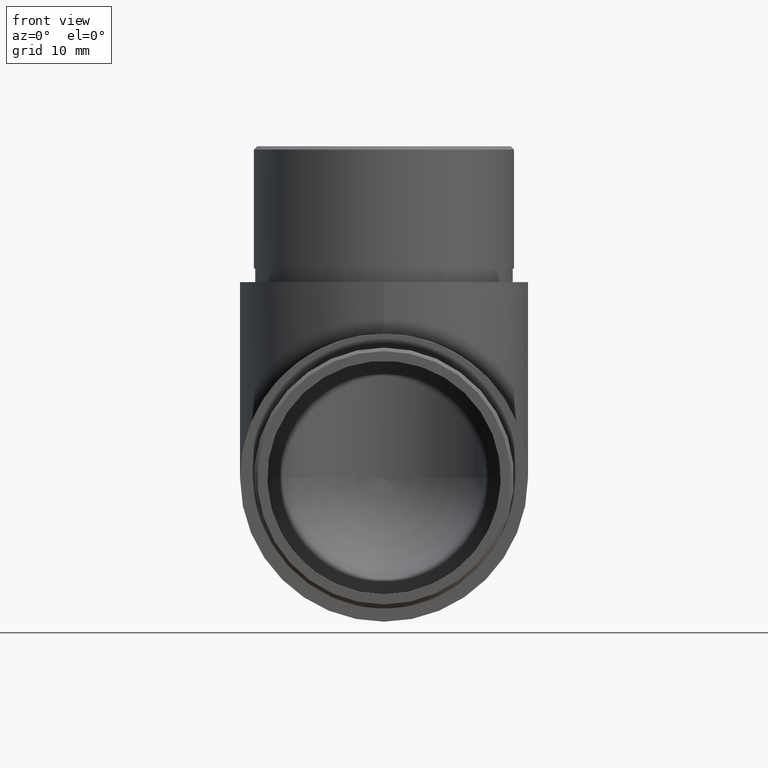
[diagram: clean part render]
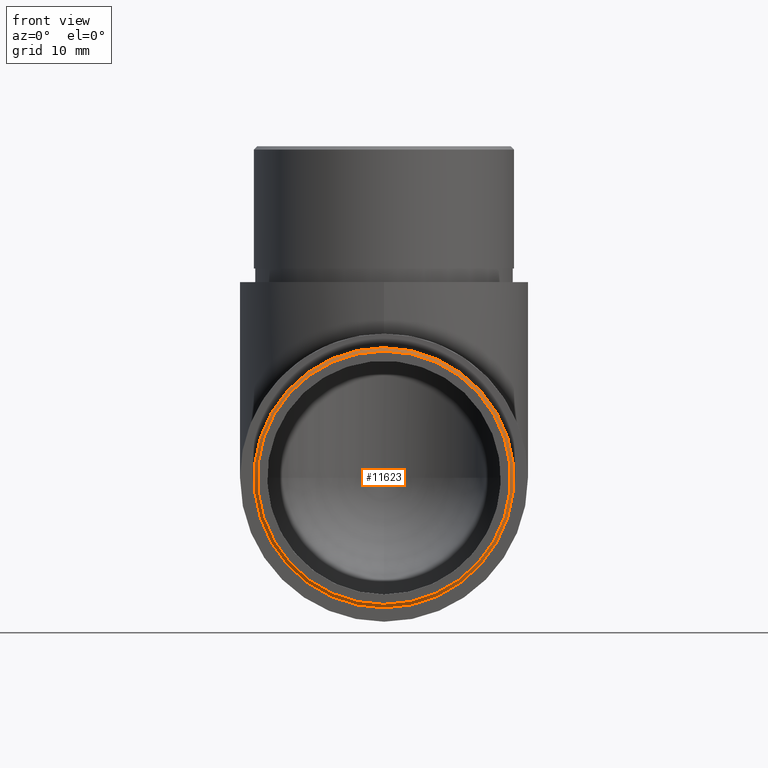
[diagram: same view with one face highlighted and labeled with its STEP entity id]
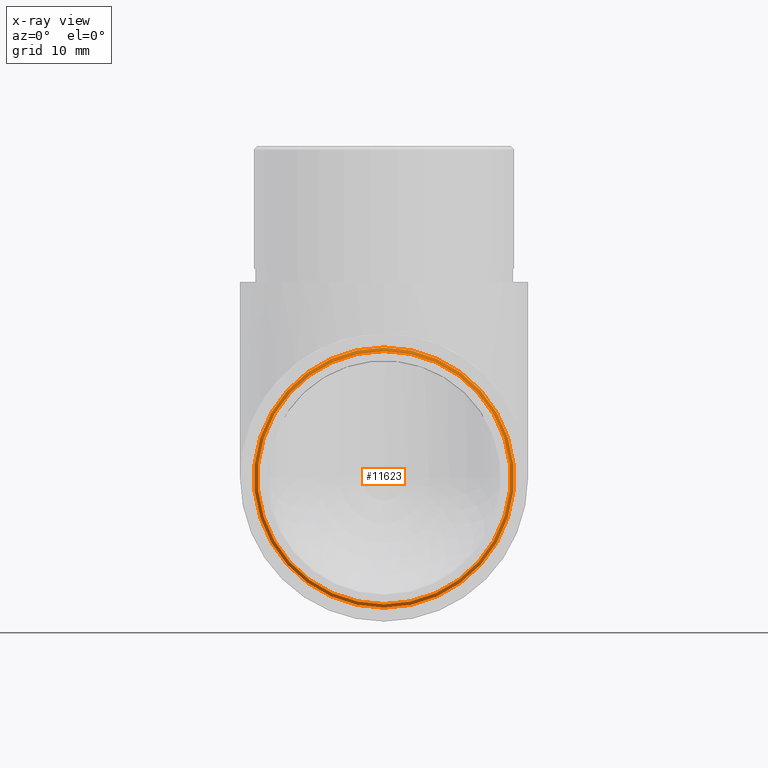
[diagram: x-ray of the same camera — body ghosted, the highlighted face saturated]
A machine part, front view. The second image highlights one B-rep face of the part: STEP entity #11623.
The next image is the same camera in x-ray: the body ghosted, the highlighted face saturated — about 0% of this face is hidden behind the body in this view.
In plain terms, the highlighted conical surface has half-angle 45 deg.
Its self-contained STEP definition (entity closure, byte-faithful):
#146 = DIRECTION ( 'NONE',  ( 0.0000000000000000000, 0.0000000000000000000, 1.000000000000000000 ) ) ;
#1348 = AXIS2_PLACEMENT_3D ( 'NONE', #10858, #6080, #5102 ) ;
#1867 = CARTESIAN_POINT ( 'NONE',  ( 0.0000000000000000000, -19.49999999999998200, 21.20000000000000300 ) ) ;
#1902 = EDGE_CURVE ( 'NONE', #10912, #10912, #4685, .T. ) ;
#2159 = CARTESIAN_POINT ( 'NONE',  ( 0.0000000000000000000, -19.99999999999999600, 2.550000000000024700 ) ) ;
#2691 = CARTESIAN_POINT ( 'NONE',  ( 0.0000000000000000000, -19.49999999999998200, 2.050000000000006500 ) ) ;
#2821 = DIRECTION ( 'NONE',  ( 0.0000000000000000000, 1.000000000000000000, 0.0000000000000000000 ) ) ;
#2917 = DIRECTION ( 'NONE',  ( 0.0000000000000000000, 1.000000000000000000, 0.0000000000000000000 ) ) ;
#3035 = CARTESIAN_POINT ( 'NONE',  ( 0.0000000000000000000, -19.99999999999999600, 21.20000000000000300 ) ) ;
#4489 = AXIS2_PLACEMENT_3D ( 'NONE', #3035, #2917, #146 ) ;
#4685 = CIRCLE ( 'NONE', #6006, 19.14999999999999900 ) ;
#5102 = DIRECTION ( 'NONE',  ( 0.0000000000000000000, 0.0000000000000000000, -1.000000000000000000 ) ) ;
#6006 = AXIS2_PLACEMENT_3D ( 'NONE', #1867, #2821, #9464 ) ;
#6080 = DIRECTION ( 'NONE',  ( 0.0000000000000000000, -1.000000000000000000, 0.0000000000000000000 ) ) ;
#6772 = EDGE_CURVE ( 'NONE', #9431, #9431, #9701, .T. ) ;
#7695 = EDGE_LOOP ( 'NONE', ( #11577 ) ) ;
#8429 = ORIENTED_EDGE ( 'NONE', *, *, #6772, .F. ) ;
#8984 = FACE_BOUND ( 'NONE', #9862, .T. ) ;
#9133 = CONICAL_SURFACE ( 'NONE', #4489, 18.64999999999998100, 0.7853981633974517200 ) ;
#9431 = VERTEX_POINT ( 'NONE', #2159 ) ;
#9464 = DIRECTION ( 'NONE',  ( 0.0000000000000000000, 0.0000000000000000000, -1.000000000000000000 ) ) ;
#9701 = CIRCLE ( 'NONE', #1348, 18.64999999999998100 ) ;
#9862 = EDGE_LOOP ( 'NONE', ( #8429 ) ) ;
#10858 = CARTESIAN_POINT ( 'NONE',  ( 0.0000000000000000000, -19.99999999999999600, 21.20000000000000300 ) ) ;
#10912 = VERTEX_POINT ( 'NONE', #2691 ) ;
#11577 = ORIENTED_EDGE ( 'NONE', *, *, #1902, .F. ) ;
#11623 = ADVANCED_FACE ( 'NONE', ( #11831, #8984 ), #9133, .T. ) ;
#11831 = FACE_OUTER_BOUND ( 'NONE', #7695, .T. ) ;